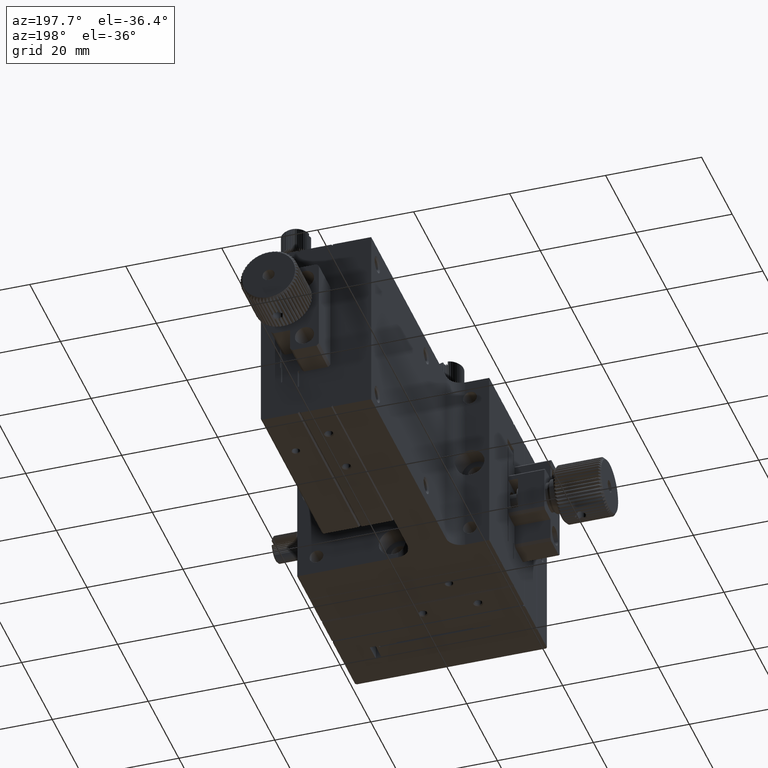
[diagram: clean part render]
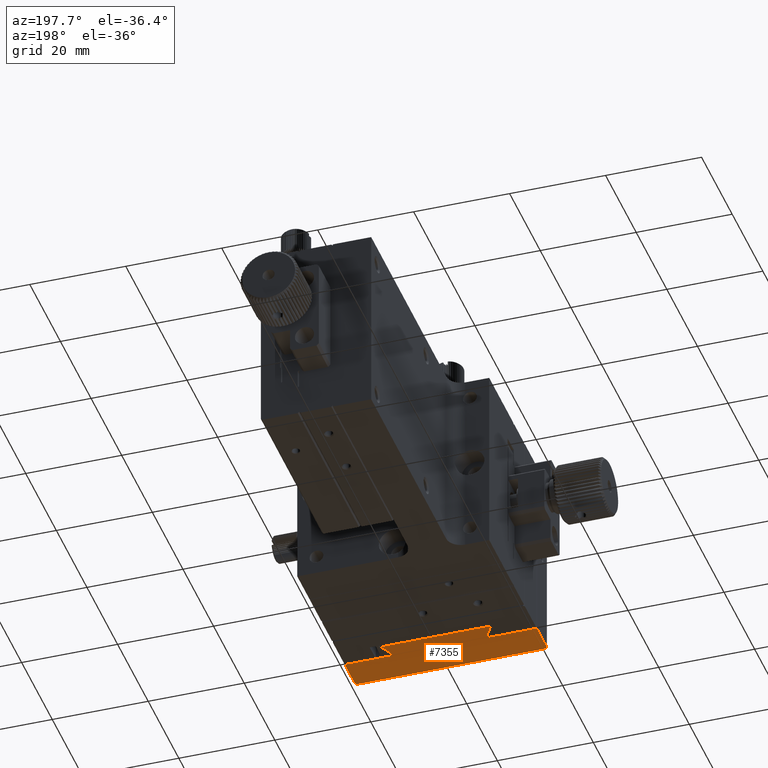
[diagram: same view with one face highlighted and labeled with its STEP entity id]
A machine part, auxiliary view. The second image highlights one B-rep face of the part: STEP entity #7355.
In plain terms, the highlighted planar face has unit normal (0, 0, -1).
Its self-contained STEP definition (entity closure, byte-faithful):
#1281 = DIRECTION ( 'NONE',  ( 0.7071067811865650032, -0.7071067811865300312, -0.000000000000000000 ) ) ;
#1638 = LINE ( 'NONE', #56953, #40361 ) ;
#2264 = LINE ( 'NONE', #17166, #33418 ) ;
#3942 = CARTESIAN_POINT ( 'NONE',  ( 0.000000000000000000, -30.00000000000000000, -40.00000000000000000 ) ) ;
#5685 = DIRECTION ( 'NONE',  ( 0.000000000000000000, 0.000000000000000000, -1.000000000000000000 ) ) ;
#5968 = DIRECTION ( 'NONE',  ( -1.000000000000000000, 0.000000000000000000, 0.000000000000000000 ) ) ;
#7355 = ADVANCED_FACE ( 'NONE', ( #52473 ), #42787, .T. ) ;
#8109 = VERTEX_POINT ( 'NONE', #11538 ) ;
#8402 = CARTESIAN_POINT ( 'NONE',  ( 40.00000000000000000, -23.00000000000000000, -40.00000000000000000 ) ) ;
#9308 = DIRECTION ( 'NONE',  ( 1.000000000000000000, -0.000000000000000000, -0.000000000000000000 ) ) ;
#9780 = ORIENTED_EDGE ( 'NONE', *, *, #25765, .T. ) ;
#10369 = VERTEX_POINT ( 'NONE', #49549 ) ;
#10378 = VECTOR ( 'NONE', #9308, 1000.000000000000000 ) ;
#11538 = CARTESIAN_POINT ( 'NONE',  ( 8.480000000000007532, -19.49999999999999645, -40.00000000000000000 ) ) ;
#12007 = DIRECTION ( 'NONE',  ( -0.000000000000000000, -1.000000000000000000, -0.000000000000000000 ) ) ;
#12244 = LINE ( 'NONE', #48137, #40209 ) ;
#12524 = VECTOR ( 'NONE', #39007, 1000.000000000000114 ) ;
#12526 = CARTESIAN_POINT ( 'NONE',  ( 39.70000000000001705, -30.00000000000000000, -40.00000000000000000 ) ) ;
#13194 = VERTEX_POINT ( 'NONE', #57595 ) ;
#13754 = CARTESIAN_POINT ( 'NONE',  ( 40.00000000000000000, -19.49999999999999645, -40.00000000000000000 ) ) ;
#13834 = EDGE_CURVE ( 'NONE', #30265, #10369, #47178, .T. ) ;
#14680 = EDGE_CURVE ( 'NONE', #54896, #8109, #12244, .T. ) ;
#15671 = LINE ( 'NONE', #39081, #51617 ) ;
#17166 = CARTESIAN_POINT ( 'NONE',  ( 40.00000000000001421, -30.00000000000000000, -40.00000000000000000 ) ) ;
#18599 = ORIENTED_EDGE ( 'NONE', *, *, #24709, .T. ) ;
#19267 = CARTESIAN_POINT ( 'NONE',  ( 40.00000000000001421, -29.69999999999998508, -40.00000000000000000 ) ) ;
#19972 = CARTESIAN_POINT ( 'NONE',  ( 40.00000000000000000, -30.00000000000000000, -40.00000000000000000 ) ) ;
#20232 = VERTEX_POINT ( 'NONE', #31562 ) ;
#21308 = CARTESIAN_POINT ( 'NONE',  ( 0.2999999999999947153, -30.00000000000000000, -40.00000000000000000 ) ) ;
#22009 = DIRECTION ( 'NONE',  ( -1.000000000000000000, -0.000000000000000000, -0.000000000000000000 ) ) ;
#23962 = ORIENTED_EDGE ( 'NONE', *, *, #13834, .T. ) ;
#24020 = VERTEX_POINT ( 'NONE', #27996 ) ;
#24709 = EDGE_CURVE ( 'NONE', #31715, #13194, #35387, .T. ) ;
#25765 = EDGE_CURVE ( 'NONE', #10369, #54896, #15671, .T. ) ;
#26863 = ORIENTED_EDGE ( 'NONE', *, *, #56547, .T. ) ;
#27239 = LINE ( 'NONE', #8402, #10378 ) ;
#27996 = CARTESIAN_POINT ( 'NONE',  ( 40.00000000000001421, -29.69999999999998508, -40.00000000000000000 ) ) ;
#28471 = EDGE_CURVE ( 'NONE', #50160, #24020, #2264, .T. ) ;
#28984 = AXIS2_PLACEMENT_3D ( 'NONE', #19972, #5685, #5968 ) ;
#30126 = VECTOR ( 'NONE', #22009, 1000.000000000000000 ) ;
#30265 = VERTEX_POINT ( 'NONE', #41482 ) ;
#30335 = EDGE_CURVE ( 'NONE', #24020, #31715, #46941, .T. ) ;
#31067 = VERTEX_POINT ( 'NONE', #45291 ) ;
#31560 = VECTOR ( 'NONE', #31929, 1000.000000000000000 ) ;
#31562 = CARTESIAN_POINT ( 'NONE',  ( 39.70000000000001705, -23.00000000000000000, -40.00000000000000000 ) ) ;
#31715 = VERTEX_POINT ( 'NONE', #12526 ) ;
#31929 = DIRECTION ( 'NONE',  ( 0.000000000000000000, 1.000000000000000000, 0.000000000000000000 ) ) ;
#32377 = CARTESIAN_POINT ( 'NONE',  ( 29.50000000000000355, -23.00000000000000000, -40.00000000000000000 ) ) ;
#33418 = VECTOR ( 'NONE', #12007, 1000.000000000000000 ) ;
#33550 = EDGE_CURVE ( 'NONE', #60155, #20232, #27239, .T. ) ;
#33747 = VECTOR ( 'NONE', #1281, 1000.000000000000000 ) ;
#33791 = EDGE_LOOP ( 'NONE', ( #26863, #35233, #47799, #53300, #37870, #18599, #56093, #54501, #23962, #9780, #50167, #52037 ) ) ;
#34199 = DIRECTION ( 'NONE',  ( 1.000000000000000000, -0.000000000000000000, -0.000000000000000000 ) ) ;
#35233 = ORIENTED_EDGE ( 'NONE', *, *, #33550, .T. ) ;
#35387 = LINE ( 'NONE', #59385, #30126 ) ;
#37870 = ORIENTED_EDGE ( 'NONE', *, *, #30335, .T. ) ;
#38352 = CARTESIAN_POINT ( 'NONE',  ( 0.000000000000000000, -23.29999999999997939, -40.00000000000000000 ) ) ;
#38594 = CARTESIAN_POINT ( 'NONE',  ( 10.49999999999999467, -23.00000000000000000, -40.00000000000000000 ) ) ;
#39007 = DIRECTION ( 'NONE',  ( -0.7071067811865312525, -0.7071067811865637820, -0.000000000000000000 ) ) ;
#39024 = EDGE_CURVE ( 'NONE', #13194, #51827, #48078, .T. ) ;
#39056 = EDGE_CURVE ( 'NONE', #51827, #30265, #49559, .T. ) ;
#39081 = CARTESIAN_POINT ( 'NONE',  ( 40.00000000000000000, -23.00000000000000000, -40.00000000000000000 ) ) ;
#39863 = DIRECTION ( 'NONE',  ( -0.7071067811865441310, 0.7071067811865510144, -0.000000000000000000 ) ) ;
#40209 = VECTOR ( 'NONE', #57536, 1000.000000000000227 ) ;
#40361 = VECTOR ( 'NONE', #57261, 1000.000000000000000 ) ;
#41482 = CARTESIAN_POINT ( 'NONE',  ( 0.000000000000000000, -23.29999999999997584, -40.00000000000000000 ) ) ;
#41715 = DIRECTION ( 'NONE',  ( 0.7071067811865779928, 0.7071067811865170416, 0.000000000000000000 ) ) ;
#42787 = PLANE ( 'NONE',  #28984 ) ;
#44048 = EDGE_CURVE ( 'NONE', #20232, #50160, #48385, .T. ) ;
#45291 = CARTESIAN_POINT ( 'NONE',  ( 31.52100000000002211, -19.49999999999999645, -40.00000000000000000 ) ) ;
#46648 = EDGE_CURVE ( 'NONE', #8109, #31067, #49919, .T. ) ;
#46941 = LINE ( 'NONE', #19267, #12524 ) ;
#47178 = LINE ( 'NONE', #38352, #59678 ) ;
#47799 = ORIENTED_EDGE ( 'NONE', *, *, #44048, .T. ) ;
#48078 = LINE ( 'NONE', #21308, #52896 ) ;
#48137 = CARTESIAN_POINT ( 'NONE',  ( 10.49999999999999822, -23.00000000000000000, -40.00000000000000000 ) ) ;
#48385 = LINE ( 'NONE', #56305, #33747 ) ;
#49549 = CARTESIAN_POINT ( 'NONE',  ( 0.3000000000000016542, -23.00000000000000000, -40.00000000000000000 ) ) ;
#49559 = LINE ( 'NONE', #3942, #31560 ) ;
#49919 = LINE ( 'NONE', #13754, #60084 ) ;
#50160 = VERTEX_POINT ( 'NONE', #60058 ) ;
#50167 = ORIENTED_EDGE ( 'NONE', *, *, #14680, .T. ) ;
#51617 = VECTOR ( 'NONE', #34199, 1000.000000000000000 ) ;
#51827 = VERTEX_POINT ( 'NONE', #59570 ) ;
#52037 = ORIENTED_EDGE ( 'NONE', *, *, #46648, .T. ) ;
#52473 = FACE_OUTER_BOUND ( 'NONE', #33791, .T. ) ;
#52600 = DIRECTION ( 'NONE',  ( 1.000000000000000000, -0.000000000000000000, -0.000000000000000000 ) ) ;
#52896 = VECTOR ( 'NONE', #39863, 999.9999999999998863 ) ;
#53300 = ORIENTED_EDGE ( 'NONE', *, *, #28471, .T. ) ;
#54501 = ORIENTED_EDGE ( 'NONE', *, *, #39056, .T. ) ;
#54896 = VERTEX_POINT ( 'NONE', #38594 ) ;
#56093 = ORIENTED_EDGE ( 'NONE', *, *, #39024, .T. ) ;
#56305 = CARTESIAN_POINT ( 'NONE',  ( 39.70000000000001705, -23.00000000000000000, -40.00000000000000000 ) ) ;
#56547 = EDGE_CURVE ( 'NONE', #31067, #60155, #1638, .T. ) ;
#56953 = CARTESIAN_POINT ( 'NONE',  ( 31.52100000000002211, -19.49999999999999645, -40.00000000000000000 ) ) ;
#57261 = DIRECTION ( 'NONE',  ( -0.5000508562094910792, -0.8659960399471552384, -0.000000000000000000 ) ) ;
#57536 = DIRECTION ( 'NONE',  ( -0.4998652637743319360, 0.8661031798070120136, 0.000000000000000000 ) ) ;
#57595 = CARTESIAN_POINT ( 'NONE',  ( 0.3000000000000016542, -30.00000000000000000, -40.00000000000000000 ) ) ;
#59385 = CARTESIAN_POINT ( 'NONE',  ( 39.70000000000001705, -30.00000000000000000, -40.00000000000000000 ) ) ;
#59570 = CARTESIAN_POINT ( 'NONE',  ( -6.938893903907228378E-15, -29.69999999999998863, -40.00000000000000000 ) ) ;
#59678 = VECTOR ( 'NONE', #41715, 1000.000000000000000 ) ;
#60058 = CARTESIAN_POINT ( 'NONE',  ( 40.00000000000001421, -23.29999999999997939, -40.00000000000000000 ) ) ;
#60084 = VECTOR ( 'NONE', #52600, 1000.000000000000000 ) ;
#60155 = VERTEX_POINT ( 'NONE', #32377 ) ;